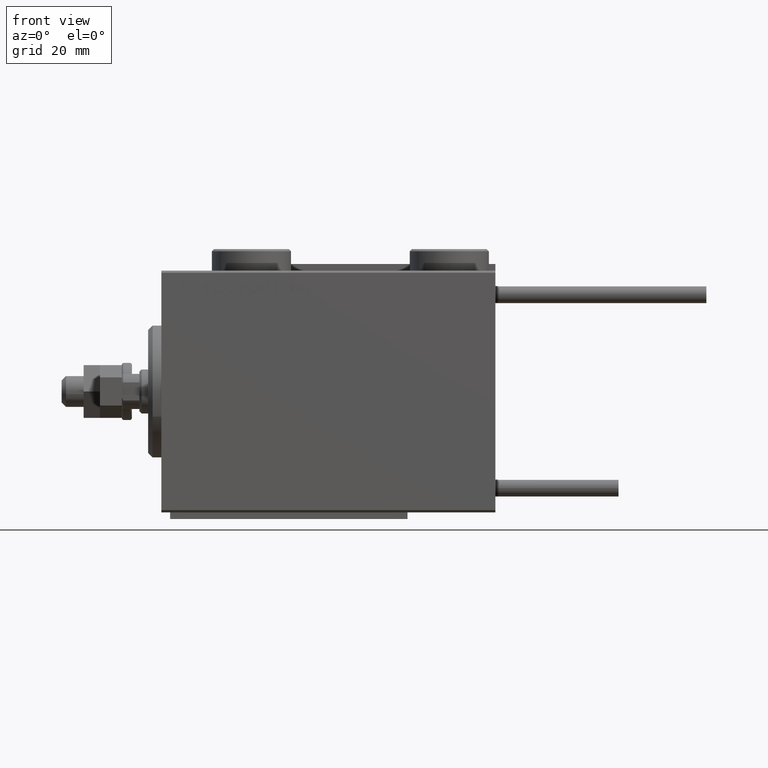
[diagram: clean part render]
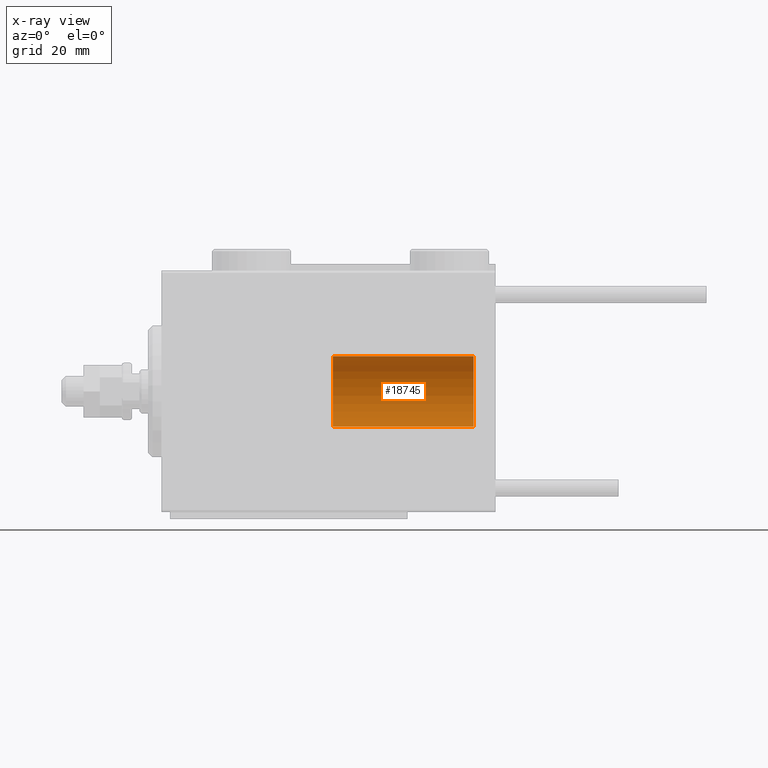
[diagram: x-ray — body ghosted, one internal face saturated and labeled with its STEP entity id]
A machine part, front view, then the same camera in x-ray: the body is ghosted and one INTERNAL B-rep face — a face not visible from any outside direction — is saturated and labeled: STEP entity #18745.
In plain terms, the highlighted cylindrical surface (edge-blend (fillet) strip) has radius 8 mm, axis along (1, -0, -0).
Its self-contained STEP definition (entity closure, byte-faithful):
#3372 = DIRECTION ( 'NONE',  ( 1.000000000000000000, 0.000000000000000000, 0.000000000000000000 ) ) ;
#3617 = CARTESIAN_POINT ( 'NONE',  ( -8.000000000000000000, 0.000000000000000000, 32.00000000000000000 ) ) ;
#7135 = ORIENTED_EDGE ( 'NONE', *, *, #46802, .F. ) ;
#8353 = CARTESIAN_POINT ( 'NONE',  ( 8.000000000000000000, 9.797174393178825657E-16, 32.00000000000000000 ) ) ;
#8419 = CIRCLE ( 'NONE', #42560, 8.000000000000000000 ) ;
#10529 = CIRCLE ( 'NONE', #32141, 8.000000000000000000 ) ;
#10963 = CARTESIAN_POINT ( 'NONE',  ( 0.000000000000000000, 0.000000000000000000, 32.00000000000000000 ) ) ;
#11461 = DIRECTION ( 'NONE',  ( -0.000000000000000000, -0.000000000000000000, -1.000000000000000000 ) ) ;
#12073 = VECTOR ( 'NONE', #11461, 1000.000000000000000 ) ;
#12956 = ORIENTED_EDGE ( 'NONE', *, *, #30983, .T. ) ;
#13394 = FACE_OUTER_BOUND ( 'NONE', #35692, .T. ) ;
#15388 = LINE ( 'NONE', #3617, #12073 ) ;
#16226 = CARTESIAN_POINT ( 'NONE',  ( 8.000000000000000000, 9.797174393178825657E-16, 0.000000000000000000 ) ) ;
#17556 = DIRECTION ( 'NONE',  ( -0.000000000000000000, -0.000000000000000000, -1.000000000000000000 ) ) ;
#18745 = ADVANCED_FACE ( 'NONE', ( #13394 ), #45190, .T. ) ;
#23580 = DIRECTION ( 'NONE',  ( 0.000000000000000000, 0.000000000000000000, 1.000000000000000000 ) ) ;
#24234 = CARTESIAN_POINT ( 'NONE',  ( -8.000000000000000000, 0.000000000000000000, 32.00000000000000000 ) ) ;
#24341 = CARTESIAN_POINT ( 'NONE',  ( 0.000000000000000000, 0.000000000000000000, 0.000000000000000000 ) ) ;
#24448 = VERTEX_POINT ( 'NONE', #8353 ) ;
#26292 = VERTEX_POINT ( 'NONE', #24234 ) ;
#29281 = CARTESIAN_POINT ( 'NONE',  ( 0.000000000000000000, 0.000000000000000000, 32.00000000000000000 ) ) ;
#30691 = DIRECTION ( 'NONE',  ( -0.000000000000000000, -0.000000000000000000, -1.000000000000000000 ) ) ;
#30983 = EDGE_CURVE ( 'NONE', #24448, #34097, #50497, .T. ) ;
#31041 = CARTESIAN_POINT ( 'NONE',  ( -8.000000000000000000, 0.000000000000000000, 0.000000000000000000 ) ) ;
#31565 = EDGE_CURVE ( 'NONE', #34097, #48912, #8419, .T. ) ;
#32141 = AXIS2_PLACEMENT_3D ( 'NONE', #10963, #35201, #3372 ) ;
#32167 = ORIENTED_EDGE ( 'NONE', *, *, #31565, .T. ) ;
#33449 = DIRECTION ( 'NONE',  ( -1.000000000000000000, 0.000000000000000000, 0.000000000000000000 ) ) ;
#34097 = VERTEX_POINT ( 'NONE', #16226 ) ;
#35201 = DIRECTION ( 'NONE',  ( 0.000000000000000000, 0.000000000000000000, 1.000000000000000000 ) ) ;
#35692 = EDGE_LOOP ( 'NONE', ( #7135, #12956, #32167, #47979 ) ) ;
#39260 = CARTESIAN_POINT ( 'NONE',  ( 8.000000000000000000, 9.797174393178825657E-16, 32.00000000000000000 ) ) ;
#40212 = DIRECTION ( 'NONE',  ( 1.000000000000000000, 0.000000000000000000, 0.000000000000000000 ) ) ;
#42192 = AXIS2_PLACEMENT_3D ( 'NONE', #29281, #17556, #33449 ) ;
#42560 = AXIS2_PLACEMENT_3D ( 'NONE', #24341, #23580, #40212 ) ;
#43254 = EDGE_CURVE ( 'NONE', #26292, #48912, #15388, .T. ) ;
#45190 = CYLINDRICAL_SURFACE ( 'NONE', #42192, 8.000000000000000000 ) ;
#46802 = EDGE_CURVE ( 'NONE', #24448, #26292, #10529, .T. ) ;
#46822 = VECTOR ( 'NONE', #30691, 1000.000000000000000 ) ;
#47979 = ORIENTED_EDGE ( 'NONE', *, *, #43254, .F. ) ;
#48912 = VERTEX_POINT ( 'NONE', #31041 ) ;
#50497 = LINE ( 'NONE', #39260, #46822 ) ;